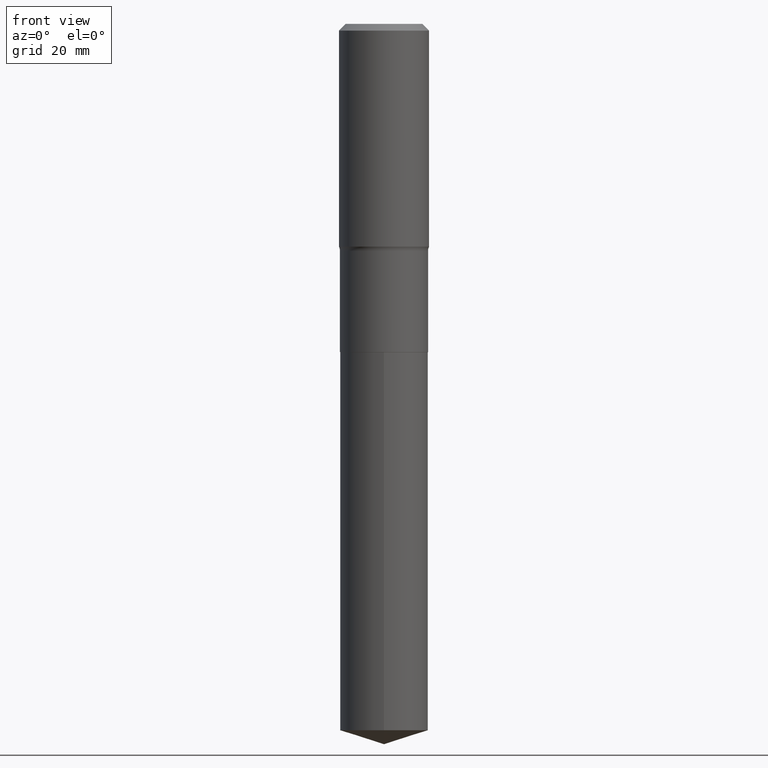
[diagram: clean part render]
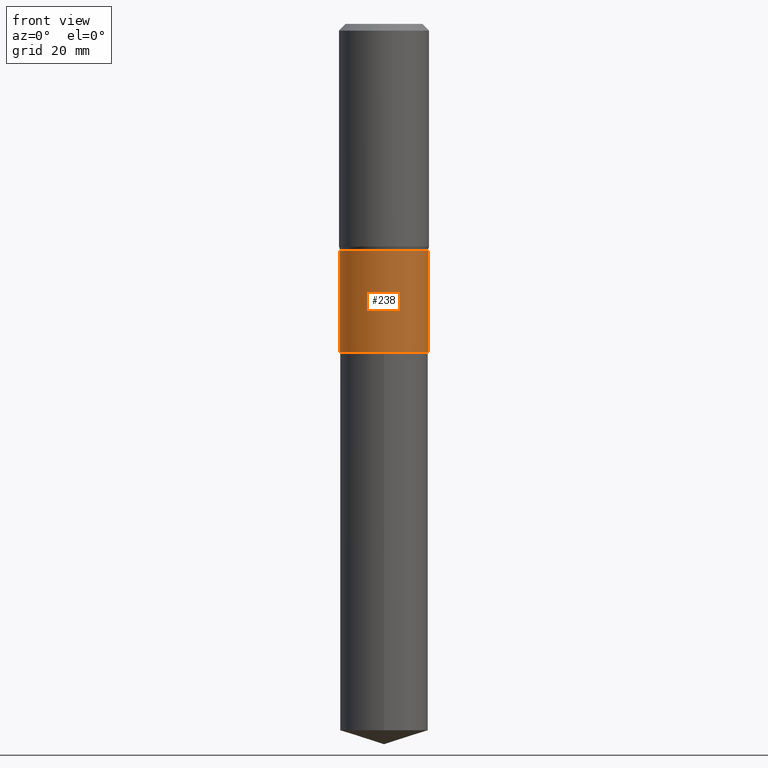
[diagram: same view with one face highlighted and labeled with its STEP entity id]
A machine part, front view. The second image highlights one B-rep face of the part: STEP entity #238.
In plain terms, the highlighted cylindrical surface (partial cylindrical patch) has radius 9.3269 mm, axis along (-0, 0, 1).
Its self-contained STEP definition (entity closure, byte-faithful):
#2 = DIRECTION ( 'NONE',  ( 1.000000000000000000, -6.982962677686265133E-15, 0.000000000000000000 ) ) ;
#7 = EDGE_CURVE ( 'NONE', #394, #337, #16, .T. ) ;
#9 = ORIENTED_EDGE ( 'NONE', *, *, #442, .T. ) ;
#16 = LINE ( 'NONE', #282, #39 ) ;
#35 = DIRECTION ( 'NONE',  ( 1.000000000000000000, -6.982962677686267499E-15, 4.876176775795935793E-29 ) ) ;
#39 = VECTOR ( 'NONE', #361, 39.37007874015748143 ) ;
#59 = CIRCLE ( 'NONE', #293, 0.3672000000000000264 ) ;
#82 = EDGE_CURVE ( 'NONE', #396, #383, #276, .T. ) ;
#88 = EDGE_CURVE ( 'NONE', #337, #383, #421, .T. ) ;
#120 = CARTESIAN_POINT ( 'NONE',  ( 0.3671999999999999709, -9.162345329392175895E-15, -1.889800000000000590 ) ) ;
#127 = CARTESIAN_POINT ( 'NONE',  ( 0.3671999999999999709, -2.564143895246397133E-15, 1.790532112072267385E-29 ) ) ;
#149 = CARTESIAN_POINT ( 'NONE',  ( -0.3672000000000000264, -5.462668207493439047E-15, -2.733900000000000219 ) ) ;
#181 = CARTESIAN_POINT ( 'NONE',  ( 0.000000000000000000, 0.000000000000000000, 0.000000000000000000 ) ) ;
#190 = CARTESIAN_POINT ( 'NONE',  ( 6.685667169229545057E-29, -9.545360832263276655E-15, -2.733900000000000219 ) ) ;
#204 = ORIENTED_EDGE ( 'NONE', *, *, #82, .T. ) ;
#214 = CYLINDRICAL_SURFACE ( 'NONE', #221, 0.3671999999999999709 ) ;
#221 = AXIS2_PLACEMENT_3D ( 'NONE', #181, #292, #35 ) ;
#238 = ADVANCED_FACE ( 'NONE', ( #291 ), #214, .T. ) ;
#263 = VECTOR ( 'NONE', #471, 39.37007874015748143 ) ;
#275 = DIRECTION ( 'NONE',  ( -2.445468806185136597E-29, 3.491481338843145583E-15, 1.000000000000000000 ) ) ;
#276 = LINE ( 'NONE', #127, #263 ) ;
#282 = CARTESIAN_POINT ( 'NONE',  ( -0.3671999999999999709, 2.609112925711087676E-15, -1.806232965141601217E-29 ) ) ;
#284 = ORIENTED_EDGE ( 'NONE', *, *, #7, .F. ) ;
#291 = FACE_OUTER_BOUND ( 'NONE', #309, .T. ) ;
#292 = DIRECTION ( 'NONE',  ( -2.445468806185136597E-29, 3.491481338843145583E-15, 1.000000000000000000 ) ) ;
#293 = AXIS2_PLACEMENT_3D ( 'NONE', #190, #339, #2 ) ;
#309 = EDGE_LOOP ( 'NONE', ( #284, #9, #204, #432 ) ) ;
#337 = VERTEX_POINT ( 'NONE', #382 ) ;
#339 = DIRECTION ( 'NONE',  ( -2.445468806185136597E-29, 3.491481338843145583E-15, 1.000000000000000000 ) ) ;
#342 = AXIS2_PLACEMENT_3D ( 'NONE', #431, #275, #391 ) ;
#361 = DIRECTION ( 'NONE',  ( -2.445468806185136877E-29, 3.491481338843145188E-15, 1.000000000000000000 ) ) ;
#382 = CARTESIAN_POINT ( 'NONE',  ( -0.3671999999999999709, -5.462668207493439836E-15, -1.889800000000000590 ) ) ;
#383 = VERTEX_POINT ( 'NONE', #120 ) ;
#391 = DIRECTION ( 'NONE',  ( 1.000000000000000000, -6.982962677686265922E-15, 0.000000000000000000 ) ) ;
#394 = VERTEX_POINT ( 'NONE', #149 ) ;
#396 = VERTEX_POINT ( 'NONE', #418 ) ;
#418 = CARTESIAN_POINT ( 'NONE',  ( 0.3672000000000000264, -1.210950472750967261E-14, -2.733900000000000219 ) ) ;
#421 = CIRCLE ( 'NONE', #342, 0.3671999999999999709 ) ;
#431 = CARTESIAN_POINT ( 'NONE',  ( 4.621446949928673110E-29, -6.598201434145779157E-15, -1.889800000000000590 ) ) ;
#432 = ORIENTED_EDGE ( 'NONE', *, *, #88, .F. ) ;
#442 = EDGE_CURVE ( 'NONE', #394, #396, #59, .T. ) ;
#471 = DIRECTION ( 'NONE',  ( -2.445468806185136877E-29, 3.491481338843145188E-15, 1.000000000000000000 ) ) ;